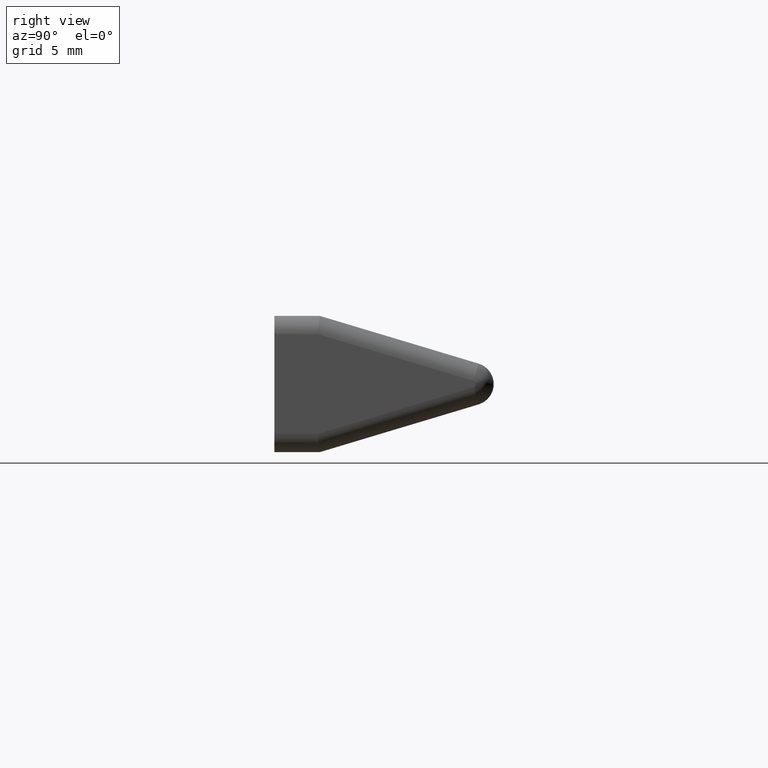
[diagram: clean part render]
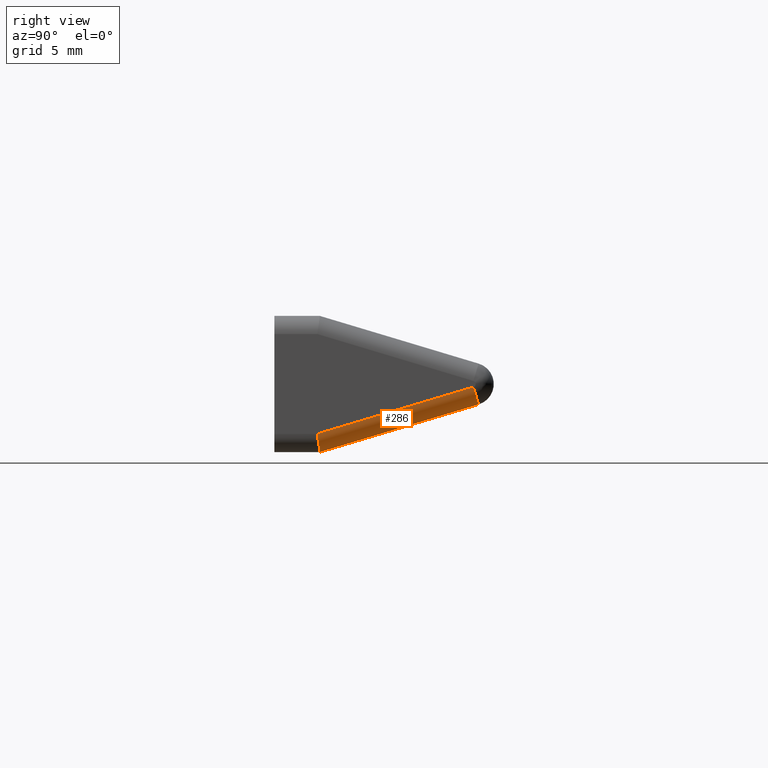
[diagram: same view with one face highlighted and labeled with its STEP entity id]
A machine part, right view. The second image highlights one B-rep face of the part: STEP entity #286.
In plain terms, the highlighted cylindrical surface (edge-blend (fillet) strip) has radius 0.8 mm, axis along (0, 0.9577, 0.2877).
Its self-contained STEP definition (entity closure, byte-faithful):
#33=FACE_OUTER_BOUND('',#51,.T.);
#51=EDGE_LOOP('',(#224,#225,#226,#227));
#63=ELLIPSE('',#339,0.808591141618024,0.8);
#72=CIRCLE('',#338,0.8);
#91=LINE('',#510,#115);
#92=LINE('',#514,#116);
#115=VECTOR('',#407,10.);
#116=VECTOR('',#410,10.);
#137=VERTEX_POINT('',#491);
#142=VERTEX_POINT('',#509);
#143=VERTEX_POINT('',#511);
#144=VERTEX_POINT('',#513);
#174=EDGE_CURVE('',#142,#137,#91,.T.);
#175=EDGE_CURVE('',#137,#143,#72,.T.);
#176=EDGE_CURVE('',#143,#144,#92,.T.);
#177=EDGE_CURVE('',#144,#142,#63,.T.);
#224=ORIENTED_EDGE('',*,*,#174,.T.);
#225=ORIENTED_EDGE('',*,*,#175,.T.);
#226=ORIENTED_EDGE('',*,*,#176,.T.);
#227=ORIENTED_EDGE('',*,*,#177,.T.);
#274=CYLINDRICAL_SURFACE('',#337,0.8);
#286=ADVANCED_FACE('',(#33),#274,.T.);
#337=AXIS2_PLACEMENT_3D('',#508,#405,#406);
#338=AXIS2_PLACEMENT_3D('',#512,#408,#409);
#339=AXIS2_PLACEMENT_3D('',#515,#411,#412);
#405=DIRECTION('center_axis',(0.,0.957726462840571,0.287680417086199));
#406=DIRECTION('ref_axis',(0.707106781186547,0.203420773736226,-0.677214876396373));
#407=DIRECTION('',(0.,0.95772646284057,0.287680417086199));
#408=DIRECTION('center_axis',(0.,-0.957726462840571,-0.287680417086198));
#409=DIRECTION('ref_axis',(0.,0.287680417086197,-0.957726462840571));
#410=DIRECTION('',(0.,-0.95772646284057,-0.287680417086199));
#411=DIRECTION('center_axis',(0.,0.989375172227546,0.145384898045549));
#412=DIRECTION('ref_axis',(0.,0.145384898045549,-0.989375172227545));
#491=CARTESIAN_POINT('',(14.28,9.00030483173816,-0.900262875070134));
#508=CARTESIAN_POINT('Origin',(14.28,3.48870954146421,-1.72051590388));
#509=CARTESIAN_POINT('',(14.28,2.00999999999999,-3.));
#510=CARTESIAN_POINT('',(14.28,3.71885387513317,-2.48669707415246));
#511=CARTESIAN_POINT('',(15.08,8.7701604980692,-0.134081704797678));
#512=CARTESIAN_POINT('Origin',(14.28,8.7701604980692,-0.134081704797678));
#513=CARTESIAN_POINT('',(15.08,1.89244305931532,-2.2));
#514=CARTESIAN_POINT('',(15.08,3.48870954146421,-1.72051590388));
#515=CARTESIAN_POINT('Origin',(14.28,1.89244305931532,-2.2));